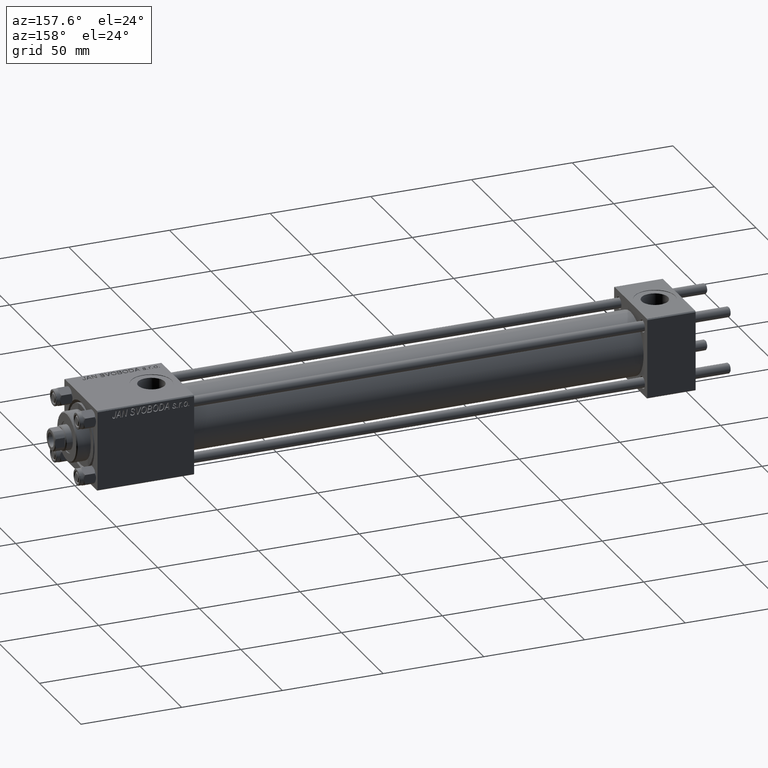
[diagram: clean part render]
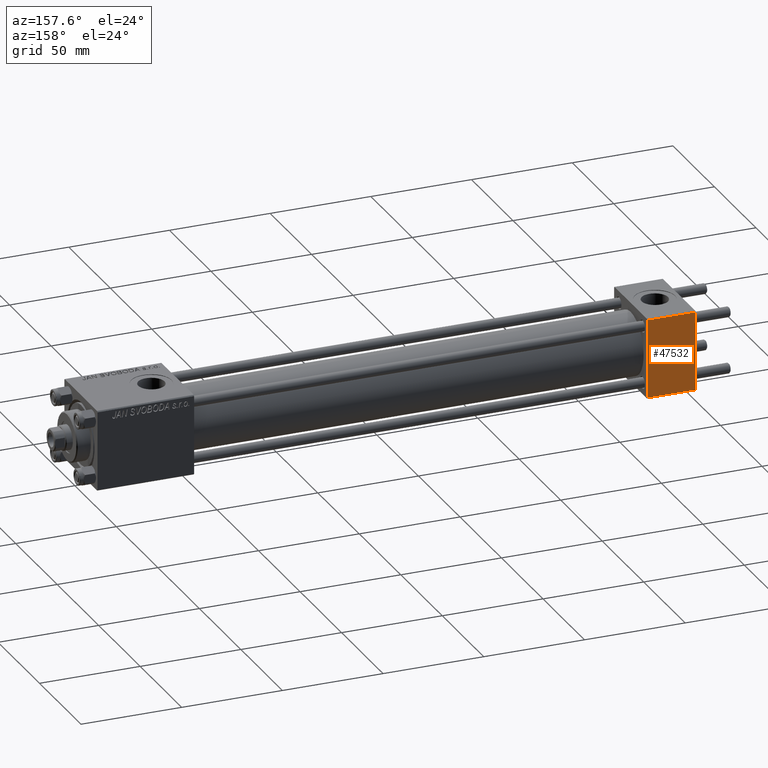
[diagram: same view with one face highlighted and labeled with its STEP entity id]
A machine part, auxiliary view. The second image highlights one B-rep face of the part: STEP entity #47532.
In plain terms, the highlighted planar face has unit normal (0, 1, 0).
Its self-contained STEP definition (entity closure, byte-faithful):
#696 = CARTESIAN_POINT ( 'NONE',  ( 24.00000000000000000, 20.00000000000000000, -19.50000000000002132 ) ) ;
#1105 = DIRECTION ( 'NONE',  ( 0.000000000000000000, 0.000000000000000000, -1.000000000000000000 ) ) ;
#2111 = EDGE_CURVE ( 'NONE', #48095, #9576, #45703, .T. ) ;
#4380 = ORIENTED_EDGE ( 'NONE', *, *, #2111, .F. ) ;
#7975 = CARTESIAN_POINT ( 'NONE',  ( 0.000000000000000000, 20.00000000000000000, -19.50000000000002132 ) ) ;
#8261 = DIRECTION ( 'NONE',  ( -1.000000000000000000, 0.000000000000000000, 0.000000000000000000 ) ) ;
#9576 = VERTEX_POINT ( 'NONE', #7975 ) ;
#12277 = LINE ( 'NONE', #696, #35353 ) ;
#12808 = FACE_OUTER_BOUND ( 'NONE', #45461, .T. ) ;
#15958 = CARTESIAN_POINT ( 'NONE',  ( 0.000000000000000000, 20.00000000000000000, 20.00000000000000000 ) ) ;
#16164 = AXIS2_PLACEMENT_3D ( 'NONE', #27684, #16575, #28426 ) ;
#16295 = VECTOR ( 'NONE', #1105, 1000.000000000000000 ) ;
#16575 = DIRECTION ( 'NONE',  ( -0.000000000000000000, 1.000000000000000000, 0.000000000000000000 ) ) ;
#17076 = VERTEX_POINT ( 'NONE', #49634 ) ;
#17467 = ORIENTED_EDGE ( 'NONE', *, *, #44407, .T. ) ;
#18584 = VECTOR ( 'NONE', #47061, 1000.000000000000000 ) ;
#19621 = PLANE ( 'NONE',  #16164 ) ;
#21542 = ORIENTED_EDGE ( 'NONE', *, *, #36477, .T. ) ;
#21825 = LINE ( 'NONE', #33650, #43928 ) ;
#23242 = CARTESIAN_POINT ( 'NONE',  ( 24.00000000000000000, 20.00000000000000000, -19.50000000000002132 ) ) ;
#27684 = CARTESIAN_POINT ( 'NONE',  ( 24.00000000000000000, 20.00000000000000000, 20.00000000000000000 ) ) ;
#28426 = DIRECTION ( 'NONE',  ( 0.000000000000000000, -0.000000000000000000, 1.000000000000000000 ) ) ;
#32628 = CARTESIAN_POINT ( 'NONE',  ( 0.000000000000000000, 20.00000000000000000, 19.49999999999999289 ) ) ;
#33650 = CARTESIAN_POINT ( 'NONE',  ( 24.00000000000000000, 20.00000000000000000, 19.49999999999999289 ) ) ;
#35353 = VECTOR ( 'NONE', #8261, 1000.000000000000000 ) ;
#35881 = VERTEX_POINT ( 'NONE', #23242 ) ;
#36477 = EDGE_CURVE ( 'NONE', #48095, #17076, #21825, .T. ) ;
#37174 = DIRECTION ( 'NONE',  ( 1.000000000000000000, 0.000000000000000000, 0.000000000000000000 ) ) ;
#39010 = LINE ( 'NONE', #46573, #18584 ) ;
#40970 = ORIENTED_EDGE ( 'NONE', *, *, #47637, .T. ) ;
#43928 = VECTOR ( 'NONE', #37174, 1000.000000000000000 ) ;
#44407 = EDGE_CURVE ( 'NONE', #35881, #9576, #12277, .T. ) ;
#45461 = EDGE_LOOP ( 'NONE', ( #40970, #17467, #4380, #21542 ) ) ;
#45703 = LINE ( 'NONE', #15958, #16295 ) ;
#46573 = CARTESIAN_POINT ( 'NONE',  ( 24.00000000000000000, 20.00000000000000000, 20.00000000000000000 ) ) ;
#47061 = DIRECTION ( 'NONE',  ( 0.000000000000000000, 0.000000000000000000, -1.000000000000000000 ) ) ;
#47532 = ADVANCED_FACE ( 'NONE', ( #12808 ), #19621, .T. ) ;
#47637 = EDGE_CURVE ( 'NONE', #17076, #35881, #39010, .T. ) ;
#48095 = VERTEX_POINT ( 'NONE', #32628 ) ;
#49634 = CARTESIAN_POINT ( 'NONE',  ( 24.00000000000000000, 20.00000000000000000, 19.49999999999999289 ) ) ;